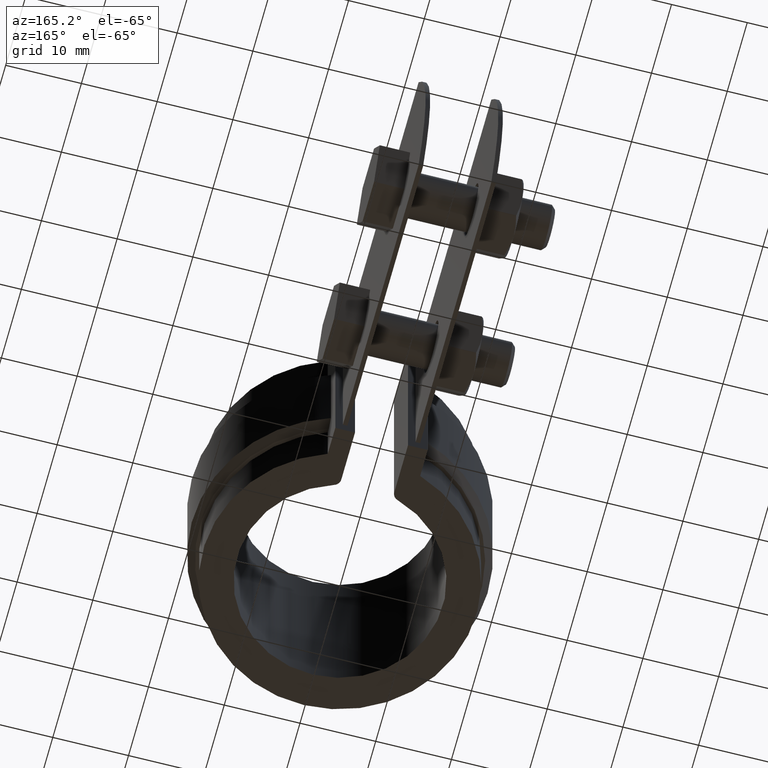
[diagram: clean part render]
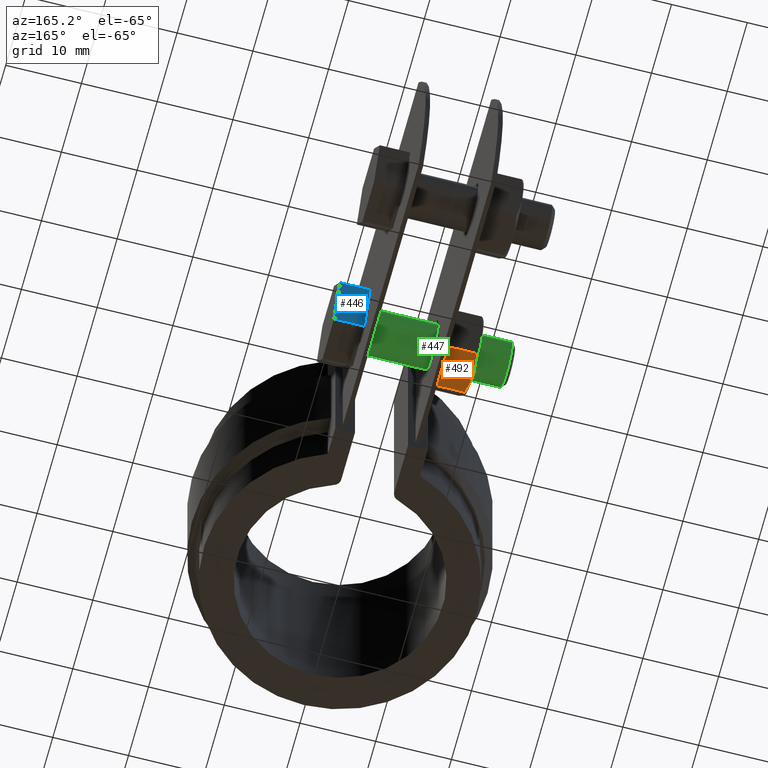
[diagram: same view with three faces highlighted in distinct colors, each labeled with its STEP entity id]
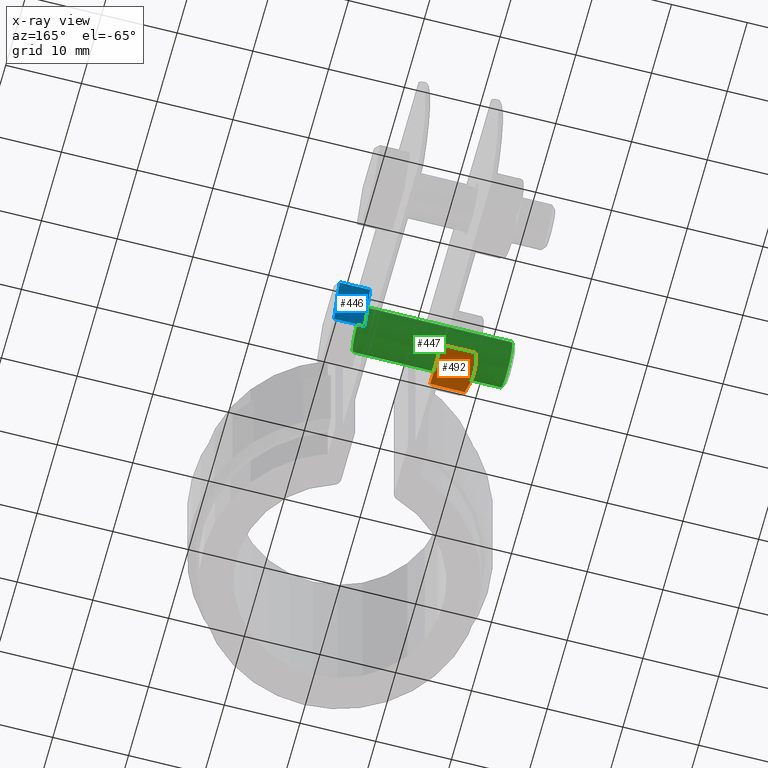
[diagram: x-ray of the same camera — body ghosted, the three highlighted faces saturated]
A machine part, auxiliary view with three faces highlighted in distinct colors.
The next image is the same camera in x-ray (body ghosted, the three faces saturated) — at least one of them is partly hidden behind the body in this view.
Their STEP definitions:

[orange] entity #492 — the highlighted planar face has unit normal (0, 0, 1).
#492 = ADVANCED_FACE( '', ( #883 ), #884, .F. );
#883 = FACE_OUTER_BOUND( '', #1669, .T. );
#884 = PLANE( '', #1670 );
#1669 = EDGE_LOOP( '', ( #3769, #3770, #3771, #3772, #3773 ) );
#1670 = AXIS2_PLACEMENT_3D( '', #3774, #3775, #3776 );
#3769 = ORIENTED_EDGE( '', *, *, #4312, .F. );
#3770 = ORIENTED_EDGE( '', *, *, #4313, .F. );
#3771 = ORIENTED_EDGE( '', *, *, #4311, .F. );
#3772 = ORIENTED_EDGE( '', *, *, #4291, .F. );
#3773 = ORIENTED_EDGE( '', *, *, #4314, .F. );
#3774 = CARTESIAN_POINT( '', ( -5.10000000000002, 25.7125394163563, -17.5000000000000 ) );
#3775 = DIRECTION( '', ( 0.000000000000000, 0.000000000000000, 1.00000000000000 ) );
#3776 = DIRECTION( '', ( 1.00000000000000, 0.000000000000000, 0.000000000000000 ) );
#4291 = EDGE_CURVE( '', #5097, #5099, #5100, .T. );
#4311 = EDGE_CURVE( '', #5099, #5127, #5129, .F. );
#4312 = EDGE_CURVE( '', #5067, #5130, #5131, .F. );
#4313 = EDGE_CURVE( '', #5127, #5067, #5132, .F. );
#4314 = EDGE_CURVE( '', #5130, #5097, #5133, .T. );
#5067 = VERTEX_POINT( '', #7553 );
#5097 = VERTEX_POINT( '', #7598 );
#5099 = VERTEX_POINT( '', #7600 );
#5100 = LINE( '', #7601, #7602 );
#5127 = VERTEX_POINT( '', #7663 );
#5129 = LINE( '', #7665, #7666 );
#5130 = VERTEX_POINT( '', #7667 );
#5131 = B_SPLINE_CURVE_WITH_KNOTS( '', 3, ( #7668, #7669, #7670, #7671, #7672, #7673 ), .UNSPECIFIED., .F., .F., ( 4, 2, 4 ), ( 0.00519725619092115, 0.00663292719463914, 0.00806859819835714 ), .UNSPECIFIED. );
#5132 = B_SPLINE_CURVE_WITH_KNOTS( '', 3, ( #7674, #7675, #7676, #7677, #7678, #7679 ), .UNSPECIFIED., .F., .F., ( 4, 2, 4 ), ( 0.00806859819835714, 0.00950497228174471, 0.0109413463651323 ), .UNSPECIFIED. );
#5133 = LINE( '', #7680, #7681 );
#7553 = CARTESIAN_POINT( '', ( -10.1000000000000, 28.5992907623044, -17.5000000000000 ) );
#7598 = CARTESIAN_POINT( '', ( -5.10000000000002, 25.7598365894042, -17.5000000000000 ) );
#7600 = CARTESIAN_POINT( '', ( -5.10000000000002, 31.4387449352045, -17.5000000000000 ) );
#7601 = CARTESIAN_POINT( '', ( -5.10000000000002, 34.3492907623044, -17.5000000000000 ) );
#7602 = VECTOR( '', #8297, 1000.00000000000 );
#7663 = CARTESIAN_POINT( '', ( -9.66698729810780, 31.4387449352045, -17.5000000000000 ) );
#7665 = CARTESIAN_POINT( '', ( -5.10000000000002, 31.4387449352045, -17.5000000000000 ) );
#7666 = VECTOR( '', #8322, 1000.00000000000 );
#7667 = CARTESIAN_POINT( '', ( -9.66698729810780, 25.7598365894042, -17.5000000000000 ) );
#7668 = CARTESIAN_POINT( '', ( -9.66698729810782, 25.7598365894042, -17.5000000000000 ) );
#7669 = CARTESIAN_POINT( '', ( -9.79876289079439, 26.2220351476612, -17.5000000000000 ) );
#7670 = CARTESIAN_POINT( '', ( -9.90898038823823, 26.6951707967890, -17.5000000000000 ) );
#7671 = CARTESIAN_POINT( '', ( -10.0594851340825, 27.6430935733853, -17.5000000000000 ) );
#7672 = CARTESIAN_POINT( '', ( -10.1000000000000, 28.1196682244329, -17.5000000000000 ) );
#7673 = CARTESIAN_POINT( '', ( -10.1000000000000, 28.5992907623044, -17.5000000000000 ) );
#7674 = CARTESIAN_POINT( '', ( -10.1000000000000, 28.5992907623044, -17.5000000000000 ) );
#7675 = CARTESIAN_POINT( '', ( -10.1000000000000, 29.0791481818825, -17.5000000000000 ) );
#7676 = CARTESIAN_POINT( '', ( -10.0583898630217, 29.5655300003725, -17.5000000000000 ) );
#7677 = CARTESIAN_POINT( '', ( -9.90676947593069, 30.5141224259317, -17.5000000000000 ) );
#7678 = CARTESIAN_POINT( '', ( -9.79793774197780, 30.9794405592889, -17.5000000000000 ) );
#7679 = CARTESIAN_POINT( '', ( -9.66698729810781, 31.4387449352045, -17.5000000000000 ) );
#7680 = CARTESIAN_POINT( '', ( -5.10000000000002, 25.7598365894042, -17.5000000000000 ) );
#7681 = VECTOR( '', #8323, 1000.00000000000 );
#8297 = DIRECTION( '', ( 0.000000000000000, 1.00000000000000, 0.000000000000000 ) );
#8322 = DIRECTION( '', ( 1.00000000000000, 0.000000000000000, 0.000000000000000 ) );
#8323 = DIRECTION( '', ( 1.00000000000000, 0.000000000000000, 0.000000000000000 ) );

[blue] entity #446 — the highlighted planar face has unit normal (0, -0.866, 0.5).
#446 = ADVANCED_FACE( '', ( #782 ), #783, .F. );
#782 = FACE_OUTER_BOUND( '', #1568, .T. );
#783 = PLANE( '', #1569 );
#1568 = EDGE_LOOP( '', ( #3424, #3425, #3426, #3427 ) );
#1569 = AXIS2_PLACEMENT_3D( '', #3428, #3429, #3430 );
#3424 = ORIENTED_EDGE( '', *, *, #4200, .T. );
#3425 = ORIENTED_EDGE( '', *, *, #4205, .F. );
#3426 = ORIENTED_EDGE( '', *, *, #4206, .F. );
#3427 = ORIENTED_EDGE( '', *, *, #4202, .T. );
#3428 = CARTESIAN_POINT( '', ( 9.09999999999835, 31.4860421082524, -17.4999999999990 ) );
#3429 = DIRECTION( '', ( 2.94091804904717E-072, -0.866025403784483, 0.499999999999923 ) );
#3430 = DIRECTION( '', ( 1.69793982728166E-072, -0.499999999999923, -0.866025403784483 ) );
#4200 = EDGE_CURVE( '', #4935, #4943, #4945, .T. );
#4202 = EDGE_CURVE( '', #4948, #4935, #4949, .T. );
#4205 = EDGE_CURVE( '', #4953, #4943, #4954, .T. );
#4206 = EDGE_CURVE( '', #4948, #4953, #4955, .T. );
#4935 = VERTEX_POINT( '', #7313 );
#4943 = VERTEX_POINT( '', #7325 );
#4945 = LINE( '', #7328, #7329 );
#4948 = VERTEX_POINT( '', #7332 );
#4949 = LINE( '', #7333, #7334 );
#4953 = VERTEX_POINT( '', #7340 );
#4954 = LINE( '', #7341, #7342 );
#4955 = LINE( '', #7343, #7344 );
#7313 = CARTESIAN_POINT( '', ( 5.10000000000000, 31.4860421082524, -17.4999999999990 ) );
#7325 = CARTESIAN_POINT( '', ( 5.10000000000000, 34.3727934542006, -12.5000000000000 ) );
#7328 = CARTESIAN_POINT( '', ( 5.10000000000000, 31.4860421082524, -17.4999999999990 ) );
#7329 = VECTOR( '', #8144, 1000.00000000005 );
#7332 = CARTESIAN_POINT( '', ( 9.09999999999835, 31.4860421082524, -17.4999999999990 ) );
#7333 = CARTESIAN_POINT( '', ( 9.09999999999835, 31.4860421082524, -17.4999999999990 ) );
#7334 = VECTOR( '', #8148, 999.999999999794 );
#7340 = CARTESIAN_POINT( '', ( 9.09999999999835, 34.3727934542006, -12.5000000000000 ) );
#7341 = CARTESIAN_POINT( '', ( 9.09999999999835, 34.3727934542006, -12.5000000000000 ) );
#7342 = VECTOR( '', #8151, 999.999999999794 );
#7343 = CARTESIAN_POINT( '', ( 9.09999999999835, 31.4860421082524, -17.4999999999990 ) );
#7344 = VECTOR( '', #8152, 1000.00000000005 );
#8144 = DIRECTION( '', ( -1.69793982728218E-072, 0.500000000000077, 0.866025403784394 ) );
#8148 = DIRECTION( '', ( -1.00000000000000, -3.39587965456385E-072, 0.000000000000000 ) );
#8151 = DIRECTION( '', ( -1.00000000000000, -3.39587965456385E-072, 0.000000000000000 ) );
#8152 = DIRECTION( '', ( -1.69793982728218E-072, 0.500000000000077, 0.866025403784394 ) );

[green] entity #447 — the highlighted cylindrical surface (bore or boss wall) has radius 3 mm, axis along (1, 0, 0).
#447 = ADVANCED_FACE( '', ( #784, #785 ), #786, .T. );
#784 = FACE_OUTER_BOUND( '', #1570, .T. );
#785 = FACE_OUTER_BOUND( '', #1571, .T. );
#786 = CYLINDRICAL_SURFACE( '', #1572, 2.99999999999938 );
#1570 = EDGE_LOOP( '', ( #3431 ) );
#1571 = EDGE_LOOP( '', ( #3432 ) );
#1572 = AXIS2_PLACEMENT_3D( '', #3433, #3434, #3435 );
#3431 = ORIENTED_EDGE( '', *, *, #4207, .T. );
#3432 = ORIENTED_EDGE( '', *, *, #4201, .F. );
#3433 = CARTESIAN_POINT( '', ( 13.5487843911323, 28.5992907623043, -12.5000000000000 ) );
#3434 = DIRECTION( '', ( 1.00000000000000, 3.39587965456385E-072, 0.000000000000000 ) );
#3435 = DIRECTION( '', ( 0.000000000000000, 0.000000000000000, 1.00000000000000 ) );
#4201 = EDGE_CURVE( '', #4946, #4946, #4947, .F. );
#4207 = EDGE_CURVE( '', #4956, #4956, #4957, .T. );
#4946 = VERTEX_POINT( '', #7330 );
#4947 = CIRCLE( '', #7331, 2.99999999999938 );
#4956 = VERTEX_POINT( '', #7345 );
#4957 = CIRCLE( '', #7346, 2.99999999999938 );
#7330 = CARTESIAN_POINT( '', ( 5.10000000000000, 28.5992907623043, -9.50000000000062 ) );
#7331 = AXIS2_PLACEMENT_3D( '', #8145, #8146, #8147 );
#7345 = CARTESIAN_POINT( '', ( -14.3999999999920, 28.5992907623043, -15.4999999999994 ) );
#7346 = AXIS2_PLACEMENT_3D( '', #8153, #8154, #8155 );
#8145 = CARTESIAN_POINT( '', ( 5.10000000000000, 28.5992907623043, -12.5000000000000 ) );
#8146 = DIRECTION( '', ( -1.00000000000000, -3.39587965456385E-072, 0.000000000000000 ) );
#8147 = DIRECTION( '', ( 0.000000000000000, 0.000000000000000, 1.00000000000000 ) );
#8153 = CARTESIAN_POINT( '', ( -14.3999999999920, 28.5992907623043, -12.5000000000000 ) );
#8154 = DIRECTION( '', ( 1.00000000000000, 3.39587965456385E-072, 0.000000000000000 ) );
#8155 = DIRECTION( '', ( 0.000000000000000, 0.000000000000000, -1.00000000000000 ) );